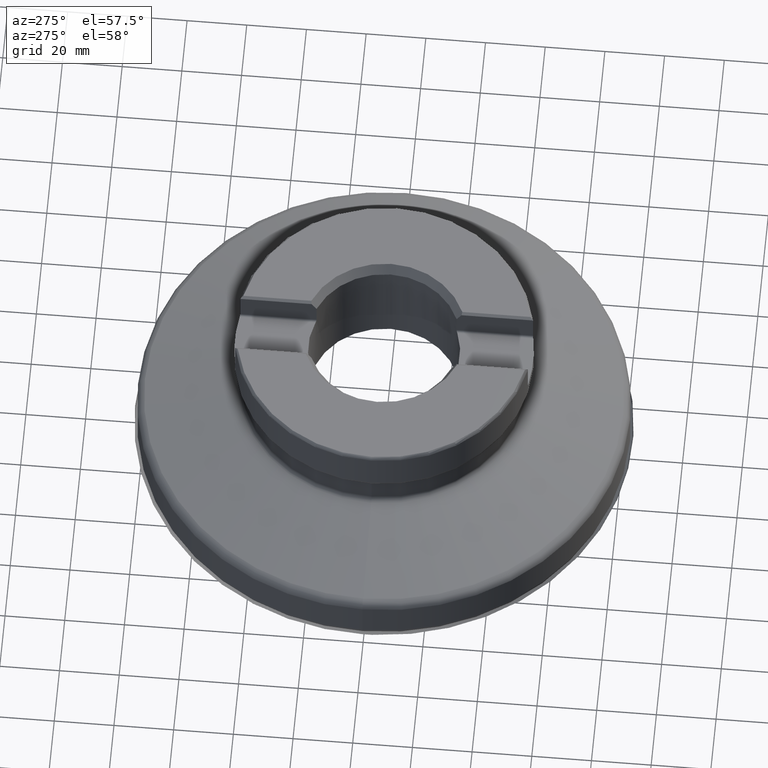
[diagram: clean part render]
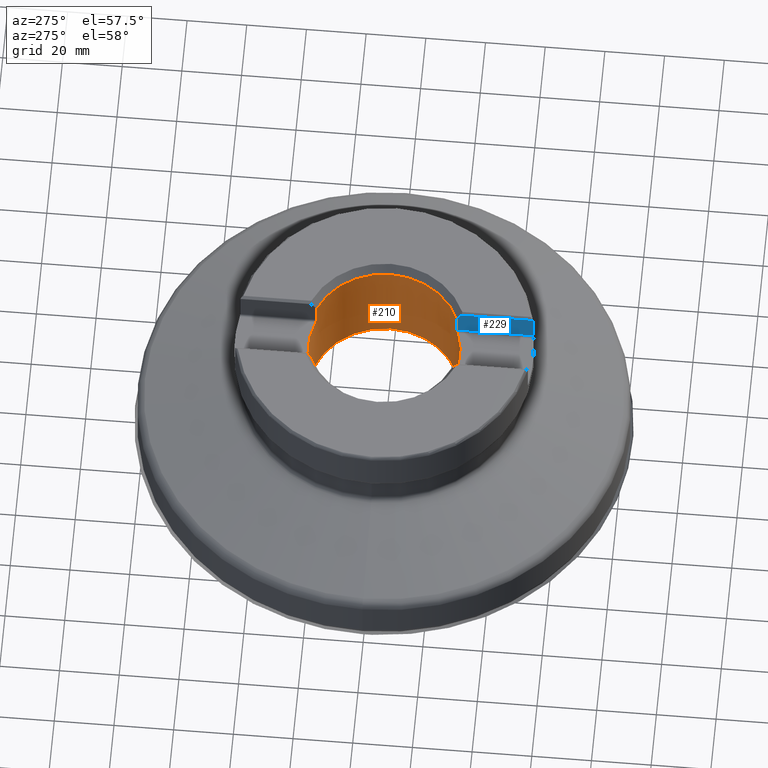
[diagram: same view with the hole feature highlighted: cylindrical wall and planar end face, labeled with their STEP entity ids]
A machine part, auxiliary view. The highlighted faces form one hole feature of diameter 50.8 mm: the cylindrical wall (entity #210, orange) and its adjacent planar end face (entity #229, blue) — they share a circular edge in the B-rep.
Wall:
#210=ADVANCED_FACE('',(#354,#355),#273,.F.);
#273=CYLINDRICAL_SURFACE('',#1044,25.4);
#282=LINE('',#1603,#318);
#283=LINE('',#1607,#319);
#284=LINE('',#1645,#320);
#285=LINE('',#1649,#321);
#318=VECTOR('',#1144,1.);
#319=VECTOR('',#1147,1.);
#320=VECTOR('',#1150,1.);
#321=VECTOR('',#1153,1.);
#354=FACE_BOUND('',#440,.T.);
#355=FACE_BOUND('',#441,.T.);
#440=EDGE_LOOP('',(#546));
#441=EDGE_LOOP('',(#547,#548,#549,#550,#551,#552,#553,#554,#555,#556,#557,
#558));
#546=ORIENTED_EDGE('',*,*,#832,.T.);
#547=ORIENTED_EDGE('',*,*,#833,.T.);
#548=ORIENTED_EDGE('',*,*,#834,.T.);
#549=ORIENTED_EDGE('',*,*,#835,.T.);
#550=ORIENTED_EDGE('',*,*,#836,.T.);
#551=ORIENTED_EDGE('',*,*,#837,.T.);
#552=ORIENTED_EDGE('',*,*,#838,.T.);
#553=ORIENTED_EDGE('',*,*,#839,.T.);
#554=ORIENTED_EDGE('',*,*,#840,.T.);
#555=ORIENTED_EDGE('',*,*,#841,.T.);
#556=ORIENTED_EDGE('',*,*,#842,.T.);
#557=ORIENTED_EDGE('',*,*,#843,.T.);
#558=ORIENTED_EDGE('',*,*,#844,.T.);
#750=VERTEX_POINT('',#1582);
#751=VERTEX_POINT('',#1584);
#752=VERTEX_POINT('',#1585);
#753=VERTEX_POINT('',#1602);
#754=VERTEX_POINT('',#1604);
#755=VERTEX_POINT('',#1606);
#756=VERTEX_POINT('',#1608);
#757=VERTEX_POINT('',#1625);
#758=VERTEX_POINT('',#1627);
#759=VERTEX_POINT('',#1644);
#760=VERTEX_POINT('',#1646);
#761=VERTEX_POINT('',#1648);
#762=VERTEX_POINT('',#1650);
#832=EDGE_CURVE('',#750,#750,#934,.T.);
#833=EDGE_CURVE('',#751,#752,#935,.T.);
#834=EDGE_CURVE('',#752,#753,#1008,.T.);
#835=EDGE_CURVE('',#753,#754,#282,.T.);
#836=EDGE_CURVE('',#754,#755,#936,.T.);
#837=EDGE_CURVE('',#755,#756,#283,.T.);
#838=EDGE_CURVE('',#756,#757,#1009,.T.);
#839=EDGE_CURVE('',#757,#758,#937,.T.);
#840=EDGE_CURVE('',#758,#759,#1010,.T.);
#841=EDGE_CURVE('',#759,#760,#284,.T.);
#842=EDGE_CURVE('',#760,#761,#938,.T.);
#843=EDGE_CURVE('',#761,#762,#285,.T.);
#844=EDGE_CURVE('',#762,#751,#1011,.T.);
#934=CIRCLE('',#1039,25.4);
#935=CIRCLE('',#1040,25.4);
#936=CIRCLE('',#1041,25.4);
#937=CIRCLE('',#1042,25.4);
#938=CIRCLE('',#1043,25.4);
#1008=B_SPLINE_CURVE_WITH_KNOTS('',3,(#1586,#1587,#1588,#1589,#1590,#1591,
#1592,#1593,#1594,#1595,#1596,#1597,#1598,#1599,#1600,#1601),
 .UNSPECIFIED.,.F.,.F.,(4,3,3,3,3,4),(0.,0.23481989244712,0.470015075110939,
0.698347126590516,0.910348097481653,1.),.UNSPECIFIED.);
#1009=B_SPLINE_CURVE_WITH_KNOTS('',3,(#1609,#1610,#1611,#1612,#1613,#1614,
#1615,#1616,#1617,#1618,#1619,#1620,#1621,#1622,#1623,#1624),
 .UNSPECIFIED.,.F.,.F.,(4,3,3,3,3,4),(0.,0.195827469719556,0.391225086017651,
0.593128315463439,0.809708782609036,1.),.UNSPECIFIED.);
#1010=B_SPLINE_CURVE_WITH_KNOTS('',3,(#1628,#1629,#1630,#1631,#1632,#1633,
#1634,#1635,#1636,#1637,#1638,#1639,#1640,#1641,#1642,#1643),
 .UNSPECIFIED.,.F.,.F.,(4,3,3,3,3,4),(0.,0.234819892447119,0.470015075110941,
0.698347126590517,0.910348097481653,1.),.UNSPECIFIED.);
#1011=B_SPLINE_CURVE_WITH_KNOTS('',3,(#1651,#1652,#1653,#1654,#1655,#1656,
#1657,#1658,#1659,#1660,#1661,#1662,#1663,#1664,#1665,#1666),
 .UNSPECIFIED.,.F.,.F.,(4,3,3,3,3,4),(0.,0.195827469719555,0.39122508601765,
0.593128315463437,0.809708782609037,1.),.UNSPECIFIED.);
#1039=AXIS2_PLACEMENT_3D('',#1581,#1140,#1141);
#1040=AXIS2_PLACEMENT_3D('',#1583,#1142,#1143);
#1041=AXIS2_PLACEMENT_3D('',#1605,#1145,#1146);
#1042=AXIS2_PLACEMENT_3D('',#1626,#1148,#1149);
#1043=AXIS2_PLACEMENT_3D('',#1647,#1151,#1152);
#1044=AXIS2_PLACEMENT_3D('',#1667,#1154,#1155);
#1140=DIRECTION('',(-1.17145536458252E-15,0.,-1.));
#1141=DIRECTION('',(1.,0.,-1.22933159714892E-15));
#1142=DIRECTION('',(4.57944423306716E-16,0.,1.));
#1143=DIRECTION('',(1.,0.,-5.46369598732853E-16));
#1144=DIRECTION('',(1.17145536458252E-15,0.,1.));
#1145=DIRECTION('',(1.17145536458252E-15,0.,1.));
#1146=DIRECTION('',(-1.,0.,1.09273919746571E-15));
#1147=DIRECTION('',(-1.17145536458252E-15,0.,-1.));
#1148=DIRECTION('',(4.57944423306716E-16,0.,1.));
#1149=DIRECTION('',(1.,0.,-5.46369598732853E-16));
#1150=DIRECTION('',(1.17145536458252E-15,0.,1.));
#1151=DIRECTION('',(1.17145536458252E-15,0.,1.));
#1152=DIRECTION('',(-1.,0.,1.09273919746571E-15));
#1153=DIRECTION('',(-1.17145536458252E-15,0.,-1.));
#1154=DIRECTION('',(-1.17145536458252E-15,0.,-1.));
#1155=DIRECTION('',(-1.,0.,1.17145536458252E-15));
#1581=CARTESIAN_POINT('',(3.08111504171037E-14,0.,26.3016));
#1582=CARTESIAN_POINT('',(25.4,0.,26.3016));
#1583=CARTESIAN_POINT('',(6.15014066405825E-14,0.,52.5));
#1584=CARTESIAN_POINT('',(8.92500000000006,23.7803358891333,52.5));
#1585=CARTESIAN_POINT('',(-8.92499999999994,23.7803358891333,52.5));
#1586=CARTESIAN_POINT('',(-8.92499999999994,23.7803358891333,52.5));
#1587=CARTESIAN_POINT('',(-9.02001793092776,23.7446747009363,52.5));
#1588=CARTESIAN_POINT('',(-9.11612423241038,23.7079198079709,52.5173343371511));
#1589=CARTESIAN_POINT('',(-9.2054356336859,23.6731906340076,52.5507631513606));
#1590=CARTESIAN_POINT('',(-9.29482310378475,23.6384318803113,52.5842204377531));
#1591=CARTESIAN_POINT('',(-9.37998919484039,23.6047029011663,52.6348351586495));
#1592=CARTESIAN_POINT('',(-9.45305150017693,23.5754070449484,52.6990327686464));
#1593=CARTESIAN_POINT('',(-9.5239362452008,23.546984326986,52.7613170230894));
#1594=CARTESIAN_POINT('',(-9.58552716848171,23.521906539057,52.8384071113845));
#1595=CARTESIAN_POINT('',(-9.63103143896055,23.5032600594418,52.9238090814504));
#1596=CARTESIAN_POINT('',(-9.67331700556385,23.4859325218857,53.003170219543));
#1597=CARTESIAN_POINT('',(-9.70292158525004,23.4736772479336,53.0921691574189));
#1598=CARTESIAN_POINT('',(-9.71633719749178,23.4681228790169,53.1825885871571));
#1599=CARTESIAN_POINT('',(-9.72208881022327,23.4657415803925,53.2213536866461));
#1600=CARTESIAN_POINT('',(-9.72499999999993,23.4645344083363,53.2607382556355));
#1601=CARTESIAN_POINT('',(-9.72499999999993,23.4645344083363,53.3));
#1602=CARTESIAN_POINT('',(-9.72499999999993,23.4645344083363,53.3));
#1603=CARTESIAN_POINT('',(-9.72499999999999,23.4645344083363,1.04000395497489E-14));
#1604=CARTESIAN_POINT('',(-9.72499999999993,23.4645344083363,60.0358983848623));
#1605=CARTESIAN_POINT('',(7.03293752304782E-14,0.,60.0358983848623));
#1606=CARTESIAN_POINT('',(-9.72499999999993,-23.4645344083363,60.0358983848623));
#1607=CARTESIAN_POINT('',(-9.72499999999999,-23.4645344083363,1.04000395497489E-14));
#1608=CARTESIAN_POINT('',(-9.72499999999993,-23.4645344083363,53.3));
#1609=CARTESIAN_POINT('',(-9.72499999999993,-23.4645344083363,53.3));
#1610=CARTESIAN_POINT('',(-9.72499999999993,-23.4645344083363,53.2153665879463));
#1611=CARTESIAN_POINT('',(-9.71112872622327,-23.4702958012809,53.1295674925109));
#1612=CARTESIAN_POINT('',(-9.68488113072809,-23.4811217254131,53.0498387176974));
#1613=CARTESIAN_POINT('',(-9.65866585416564,-23.4919343194742,52.9702081137395));
#1614=CARTESIAN_POINT('',(-9.61948841667423,-23.5080450552186,52.8944854850405));
#1615=CARTESIAN_POINT('',(-9.57100425992213,-23.5277682209034,52.8281117757749));
#1616=CARTESIAN_POINT('',(-9.52088758654488,-23.5481554879779,52.7595031883324));
#1617=CARTESIAN_POINT('',(-9.45962139329078,-23.5728835879928,52.6990899972888));
#1618=CARTESIAN_POINT('',(-9.39212351845429,-23.5997460963905,52.6505420579385));
#1619=CARTESIAN_POINT('',(-9.31977182543451,-23.6285403060754,52.5985030031811));
#1620=CARTESIAN_POINT('',(-9.23844032439822,-23.6605020773842,52.5587375521568));
#1621=CARTESIAN_POINT('',(-9.15429106596247,-23.6930149005912,52.5335630442954));
#1622=CARTESIAN_POINT('',(-9.08012538577998,-23.7216703598624,52.5113752730243));
#1623=CARTESIAN_POINT('',(-9.00228313236403,-23.7513307497793,52.5));
#1624=CARTESIAN_POINT('',(-8.92499999999994,-23.7803358891333,52.5));
#1625=CARTESIAN_POINT('',(-8.92499999999994,-23.7803358891333,52.5));
#1626=CARTESIAN_POINT('',(6.15014066405825E-14,0.,52.5));
#1627=CARTESIAN_POINT('',(8.92500000000006,-23.7803358891333,52.5));
#1628=CARTESIAN_POINT('',(8.92500000000006,-23.7803358891333,52.5));
#1629=CARTESIAN_POINT('',(9.02001793092788,-23.7446747009363,52.5));
#1630=CARTESIAN_POINT('',(9.1161242324105,-23.7079198079709,52.5173343371511));
#1631=CARTESIAN_POINT('',(9.20543563368602,-23.6731906340076,52.5507631513606));
#1632=CARTESIAN_POINT('',(9.29482310378487,-23.6384318803113,52.5842204377531));
#1633=CARTESIAN_POINT('',(9.37998919484052,-23.6047029011663,52.6348351586495));
#1634=CARTESIAN_POINT('',(9.45305150017706,-23.5754070449484,52.6990327686464));
#1635=CARTESIAN_POINT('',(9.52393624520092,-23.546984326986,52.7613170230894));
#1636=CARTESIAN_POINT('',(9.58552716848183,-23.521906539057,52.8384071113845));
#1637=CARTESIAN_POINT('',(9.63103143896068,-23.5032600594418,52.9238090814504));
#1638=CARTESIAN_POINT('',(9.67331700556397,-23.4859325218857,53.003170219543));
#1639=CARTESIAN_POINT('',(9.70292158525017,-23.4736772479336,53.0921691574189));
#1640=CARTESIAN_POINT('',(9.7163371974919,-23.4681228790169,53.1825885871571));
#1641=CARTESIAN_POINT('',(9.72208881022339,-23.4657415803925,53.2213536866461));
#1642=CARTESIAN_POINT('',(9.72500000000008,-23.4645344083363,53.2607382556355));
#1643=CARTESIAN_POINT('',(9.72500000000008,-23.4645344083363,53.3));
#1644=CARTESIAN_POINT('',(9.72500000000008,-23.4645344083363,53.3));
#1645=CARTESIAN_POINT('',(9.72500000000002,-23.4645344083363,-8.41531180811663E-15));
#1646=CARTESIAN_POINT('',(9.72500000000007,-23.4645344083363,60.0358983848623));
#1647=CARTESIAN_POINT('',(7.03293752304782E-14,0.,60.0358983848623));
#1648=CARTESIAN_POINT('',(9.72500000000007,23.4645344083363,60.0358983848623));
#1649=CARTESIAN_POINT('',(9.72500000000002,23.4645344083363,-8.41531180811663E-15));
#1650=CARTESIAN_POINT('',(9.72500000000008,23.4645344083363,53.3));
#1651=CARTESIAN_POINT('',(9.72500000000008,23.4645344083363,53.3));
#1652=CARTESIAN_POINT('',(9.72500000000008,23.4645344083363,53.2153665879462));
#1653=CARTESIAN_POINT('',(9.71112872622339,23.4702958012809,53.1295674925109));
#1654=CARTESIAN_POINT('',(9.68488113072821,23.4811217254131,53.0498387176974));
#1655=CARTESIAN_POINT('',(9.65866585416576,23.4919343194742,52.9702081137395));
#1656=CARTESIAN_POINT('',(9.61948841667435,23.5080450552186,52.8944854850405));
#1657=CARTESIAN_POINT('',(9.57100425992226,23.5277682209034,52.8281117757749));
#1658=CARTESIAN_POINT('',(9.52088758654501,23.5481554879779,52.7595031883324));
#1659=CARTESIAN_POINT('',(9.4596213932909,23.5728835879928,52.6990899972888));
#1660=CARTESIAN_POINT('',(9.39212351845442,23.5997460963905,52.6505420579385));
#1661=CARTESIAN_POINT('',(9.31977182543464,23.6285403060754,52.5985030031811));
#1662=CARTESIAN_POINT('',(9.23844032439834,23.6605020773842,52.5587375521568));
#1663=CARTESIAN_POINT('',(9.15429106596259,23.6930149005912,52.5335630442954));
#1664=CARTESIAN_POINT('',(9.0801253857801,23.7216703598624,52.5113752730243));
#1665=CARTESIAN_POINT('',(9.00228313236415,23.7513307497793,52.5));
#1666=CARTESIAN_POINT('',(8.92500000000006,23.7803358891333,52.5));
#1667=CARTESIAN_POINT('',(0.,0.,0.));
End face:
#169=PLANE('',#1094);
#197=FACE_OUTER_BOUND('',#471,.T.);
#229=ADVANCED_FACE('',(#197),#169,.T.);
#284=LINE('',#1645,#320);
#288=LINE('',#1713,#324);
#296=LINE('',#1942,#332);
#297=LINE('',#1943,#333);
#320=VECTOR('',#1150,1.);
#324=VECTOR('',#1164,1.);
#332=VECTOR('',#1266,1.);
#333=VECTOR('',#1267,1.);
#471=EDGE_LOOP('',(#630,#631,#632,#633,#634,#635));
#630=ORIENTED_EDGE('',*,*,#841,.F.);
#631=ORIENTED_EDGE('',*,*,#904,.T.);
#632=ORIENTED_EDGE('',*,*,#852,.F.);
#633=ORIENTED_EDGE('',*,*,#867,.F.);
#634=ORIENTED_EDGE('',*,*,#905,.T.);
#635=ORIENTED_EDGE('',*,*,#880,.F.);
#759=VERTEX_POINT('',#1644);
#760=VERTEX_POINT('',#1646);
#770=VERTEX_POINT('',#1712);
#771=VERTEX_POINT('',#1714);
#783=VERTEX_POINT('',#1817);
#791=VERTEX_POINT('',#1861);
#841=EDGE_CURVE('',#759,#760,#284,.T.);
#852=EDGE_CURVE('',#770,#771,#288,.T.);
#867=EDGE_CURVE('',#783,#770,#1023,.T.);
#880=EDGE_CURVE('',#760,#791,#1027,.T.);
#904=EDGE_CURVE('',#759,#771,#296,.T.);
#905=EDGE_CURVE('',#783,#791,#297,.T.);
#1023=B_SPLINE_CURVE_WITH_KNOTS('',3,(#1818,#1819,#1820,#1821,#1822,#1823,
#1824),.UNSPECIFIED.,.F.,.F.,(4,3,4),(0.,0.110881145973954,1.),
 .UNSPECIFIED.);
#1027=B_SPLINE_CURVE_WITH_KNOTS('',3,(#1857,#1858,#1859,#1860),
 .UNSPECIFIED.,.F.,.F.,(4,4),(0.,1.),.UNSPECIFIED.);
#1094=AXIS2_PLACEMENT_3D('',#1944,#1268,#1269);
#1150=DIRECTION('',(1.17145536458252E-15,0.,1.));
#1164=DIRECTION('',(-1.17145536458252E-15,0.,-1.));
#1266=DIRECTION('',(0.,-1.,0.));
#1267=DIRECTION('',(0.,1.,0.));
#1268=DIRECTION('',(-1.,0.,8.65327692351323E-16));
#1269=DIRECTION('',(8.65627014512427E-16,0.,1.));
#1644=CARTESIAN_POINT('',(9.72500000000008,-23.4645344083363,53.3));
#1645=CARTESIAN_POINT('',(9.72500000000002,-23.4645344083363,-8.41531180811663E-15));
#1646=CARTESIAN_POINT('',(9.72500000000007,-23.4645344083363,60.0358983848623));
#1712=CARTESIAN_POINT('',(9.72500000000007,-49.0451259046197,62.2));
#1713=CARTESIAN_POINT('',(9.72500000000002,-49.0451259046197,-8.41531180811663E-15));
#1714=CARTESIAN_POINT('',(9.72500000000008,-49.0451259046197,53.3));
#1817=CARTESIAN_POINT('',(9.72500000000007,-48.957666310295,62.7));
#1818=CARTESIAN_POINT('',(9.72500000000007,-48.957666310295,62.7));
#1819=CARTESIAN_POINT('',(9.72500000000007,-48.9641073525453,62.6821311083075));
#1820=CARTESIAN_POINT('',(9.72500000000007,-48.9702056402295,62.6641349205809));
#1821=CARTESIAN_POINT('',(9.72500000000007,-48.9759539418281,62.6460312926483));
#1822=CARTESIAN_POINT('',(9.72500000000007,-49.0214863422874,62.5026321298452));
#1823=CARTESIAN_POINT('',(9.72500000000007,-49.0451259046197,62.350454376421));
#1824=CARTESIAN_POINT('',(9.72500000000007,-49.0451259046197,62.2));
#1857=CARTESIAN_POINT('',(9.72500000000007,-23.4645344083363,60.0358983848623));
#1858=CARTESIAN_POINT('',(9.72500000000007,-24.0187593756162,60.9226968614265));
#1859=CARTESIAN_POINT('',(9.72500000000007,-24.5709387155661,61.8108091015404));
#1860=CARTESIAN_POINT('',(9.72500000000007,-25.121438504434,62.7));
#1861=CARTESIAN_POINT('',(9.72500000000007,-25.121438504434,62.7));
#1942=CARTESIAN_POINT('',(9.72500000000006,-49.0451259046197,53.3));
#1943=CARTESIAN_POINT('',(9.72500000000007,-25.6160960140299,62.7));
#1944=CARTESIAN_POINT('',(9.72500000000006,-90.,52.5));